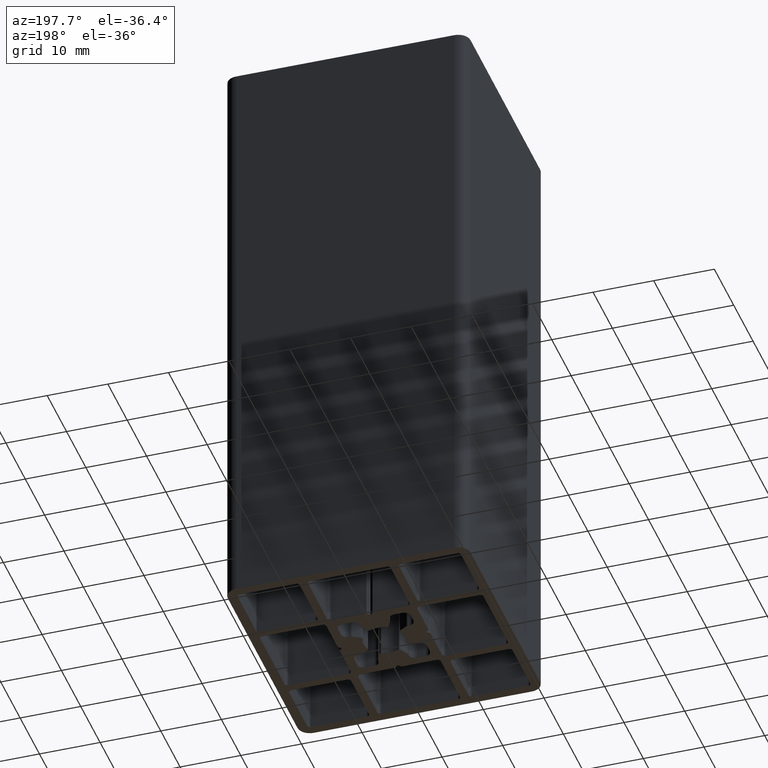
[diagram: clean part render]
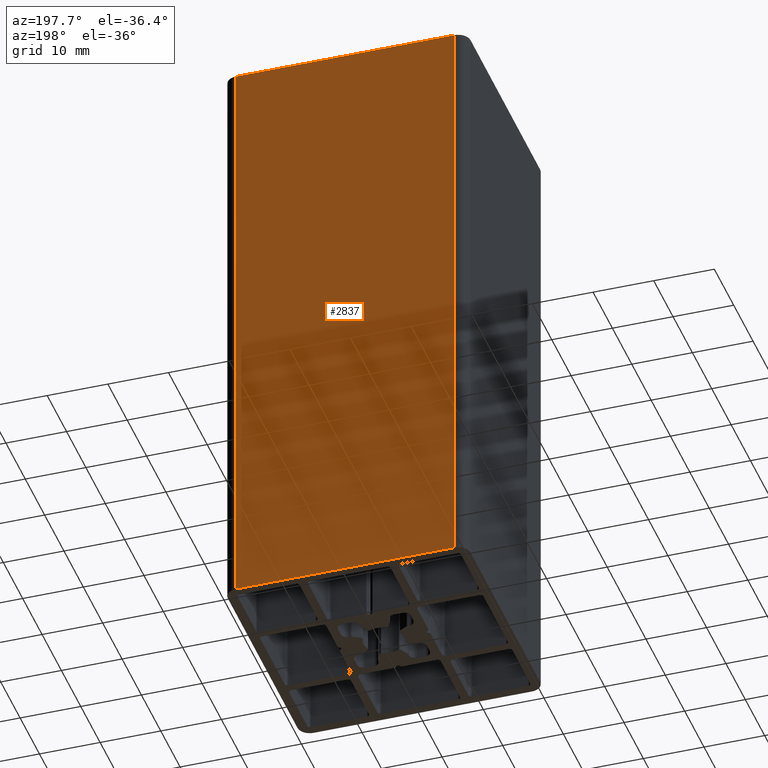
[diagram: same view with one face highlighted and labeled with its STEP entity id]
A machine part, auxiliary view. The second image highlights one B-rep face of the part: STEP entity #2837.
In plain terms, the highlighted planar face has unit normal (0, 1, 0).
Its self-contained STEP definition (entity closure, byte-faithful):
#368=FACE_OUTER_BOUND('',#509,.T.);
#509=EDGE_LOOP('',(#2331,#2332,#2333,#2334));
#806=LINE('',#4762,#1089);
#807=LINE('',#4766,#1090);
#808=LINE('',#4768,#1091);
#809=LINE('',#4769,#1092);
#1089=VECTOR('',#3921,100.);
#1090=VECTOR('',#3926,36.);
#1091=VECTOR('',#3927,100.);
#1092=VECTOR('',#3928,36.);
#1368=VERTEX_POINT('',#4759);
#1369=VERTEX_POINT('',#4761);
#1370=VERTEX_POINT('',#4765);
#1371=VERTEX_POINT('',#4767);
#1779=EDGE_CURVE('',#1369,#1368,#806,.T.);
#1781=EDGE_CURVE('',#1368,#1370,#807,.T.);
#1782=EDGE_CURVE('',#1371,#1370,#808,.T.);
#1783=EDGE_CURVE('',#1369,#1371,#809,.T.);
#2331=ORIENTED_EDGE('',*,*,#1781,.T.);
#2332=ORIENTED_EDGE('',*,*,#1782,.F.);
#2333=ORIENTED_EDGE('',*,*,#1783,.F.);
#2334=ORIENTED_EDGE('',*,*,#1779,.T.);
#2698=PLANE('',#3110);
#2837=ADVANCED_FACE('',(#368),#2698,.T.);
#3110=AXIS2_PLACEMENT_3D('',#4764,#3924,#3925);
#3921=DIRECTION('',(0.,0.,1.));
#3924=DIRECTION('center_axis',(0.,1.,0.));
#3925=DIRECTION('ref_axis',(-1.,0.,0.));
#3926=DIRECTION('',(1.,0.,0.));
#3927=DIRECTION('',(0.,0.,1.));
#3928=DIRECTION('',(1.,0.,0.));
#4759=CARTESIAN_POINT('',(-18.,20.,100.));
#4761=CARTESIAN_POINT('',(-18.,20.,0.));
#4762=CARTESIAN_POINT('',(-18.,20.,0.));
#4764=CARTESIAN_POINT('Origin',(18.,20.,0.));
#4765=CARTESIAN_POINT('',(18.,20.,100.));
#4766=CARTESIAN_POINT('',(9.,20.,100.));
#4767=CARTESIAN_POINT('',(18.,20.,0.));
#4768=CARTESIAN_POINT('',(18.,20.,0.));
#4769=CARTESIAN_POINT('',(9.,20.,0.));